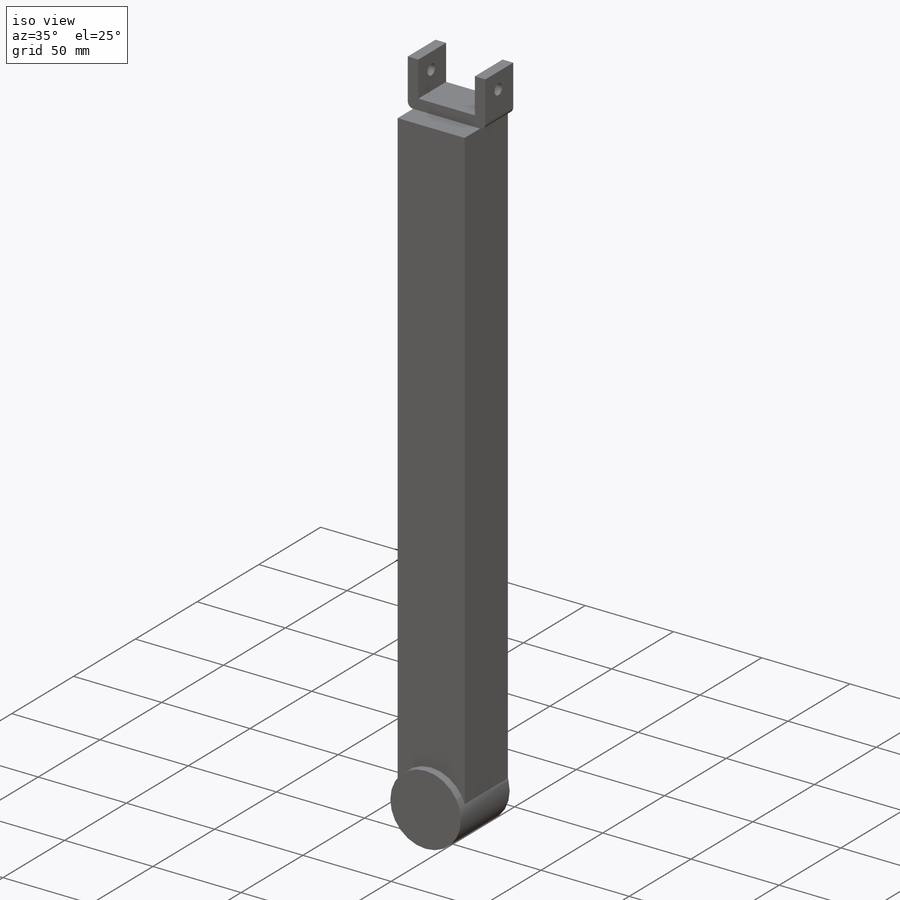
[diagram: iso view]
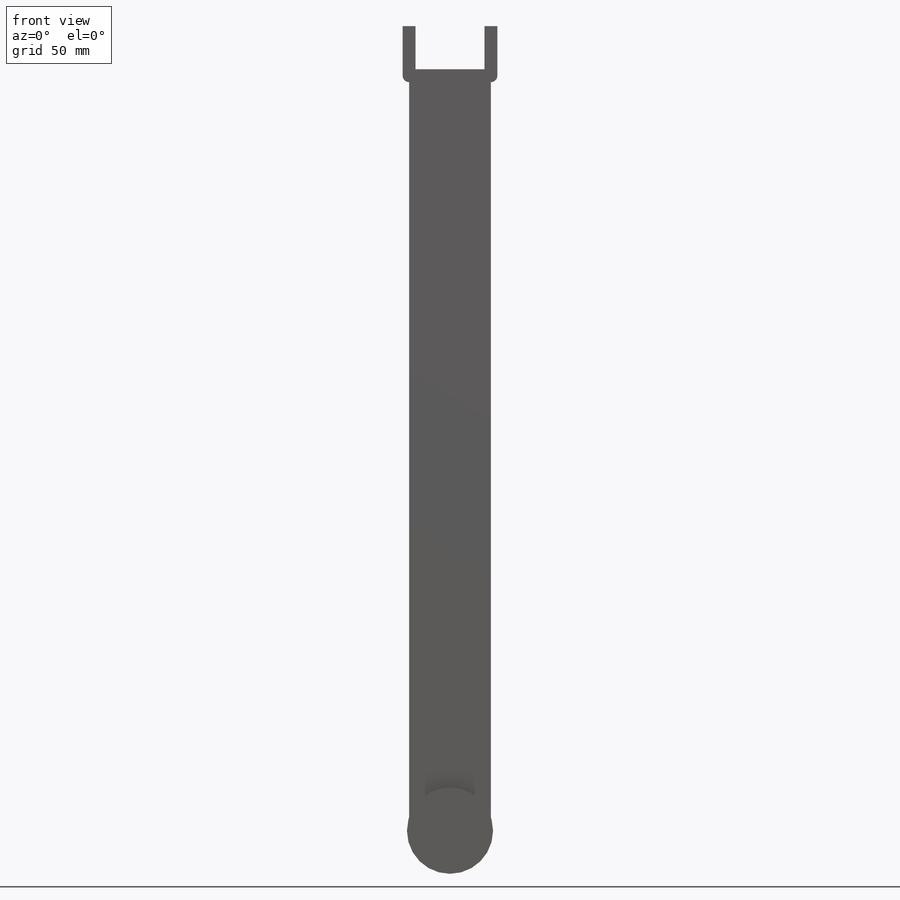
[diagram: front view]
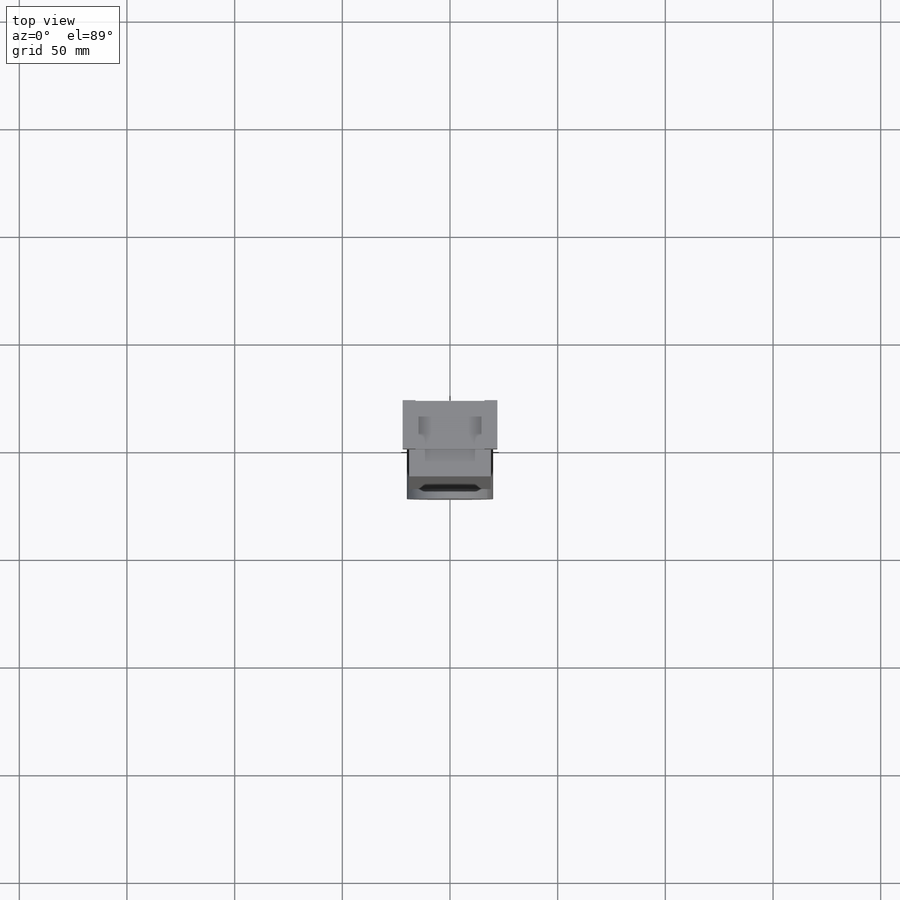
[diagram: top view]
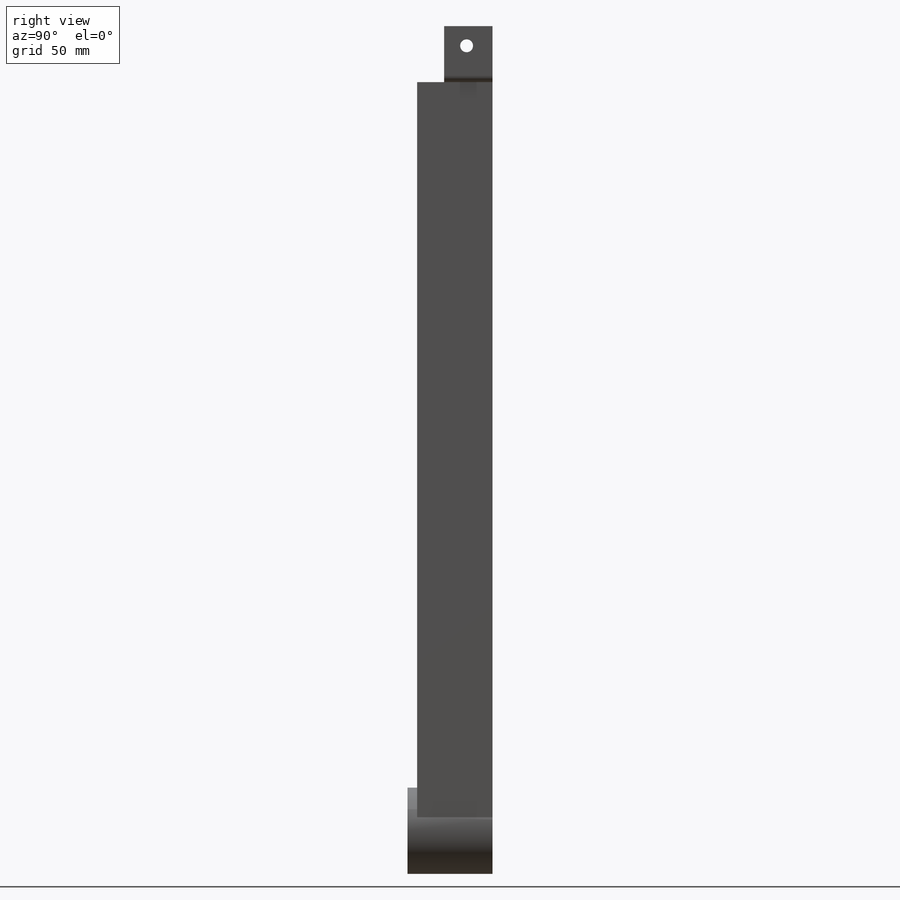
[diagram: right view]
SOLIDWORKS PART (.sldprt)
format: sldprt  version: not decoded by parser v0  size: 212,992 bytes
history: native  units: mm
features: sketch x8, extrude x5, plane x4, cut_extrude x2, mirror x2, material x1 (+11 scaffold rows collapsed)
feature tree (33):
  scaffold x11  (default folders/planes/origin — collapsed)
  material  "Material <not specified>"
  sketch  "Sketch1"  dims[c1.D1=35.0mm c1.D2=~148.581788mm c2.D2=~166.745019deg c3.D2=38.0mm]
  extrude  "Boss-Extrude1"  Depth=295mm
  sketch  "Sketch2"  dims[c1.D2=3.0mm c1.D3=3.0mm c1.D1=22.0mm c2.D2=22.0mm c2.D1=6.0mm]
  extrude  "Boss-Extrude3"  Depth=17.5mm
  extrude  "Boss-Extrude6"  [1 undecoded]
  sketch  "Sketch1<3>"  dims[D1=348.59mm]
  plane  "Plane2"
  sketch  "Sketch3"  dims[D1=5.0mm]
  cut_extrude  "Cut-Extrude1"  [1 undecoded]
  mirror  "Mirror1"
  sketch  "Sketch9"
  plane  "Plane3"
  plane  "Plane4"
  extrude  "Axis3"  [1 undecoded]
  sketch  "Sketch11"
  sketch  "Sketch5"  dims[D1=364.5mm]
  extrude  "Boss-Extrude8"  Depth=22mm
  sketch  "Sketch8"  dims[c1.D1=~6.511807mm c1.D2=6.0mm c2.D1=85.0mm c2.D2=0.0mm]
  cut_extrude  "Cut-Extrude2"  Depth=10mm
  mirror  "Coordinate System3"
  plane  "Plane5"
decode coverage: 10 of 17 modeling features carry decoded parameters
note: ~ marks probable driven/reference dimensions
note: 3 parameter values undecoded
summary: no parameter record found for 3 features
note: suppression state not decoded; provenance and decode notes live in map.json
